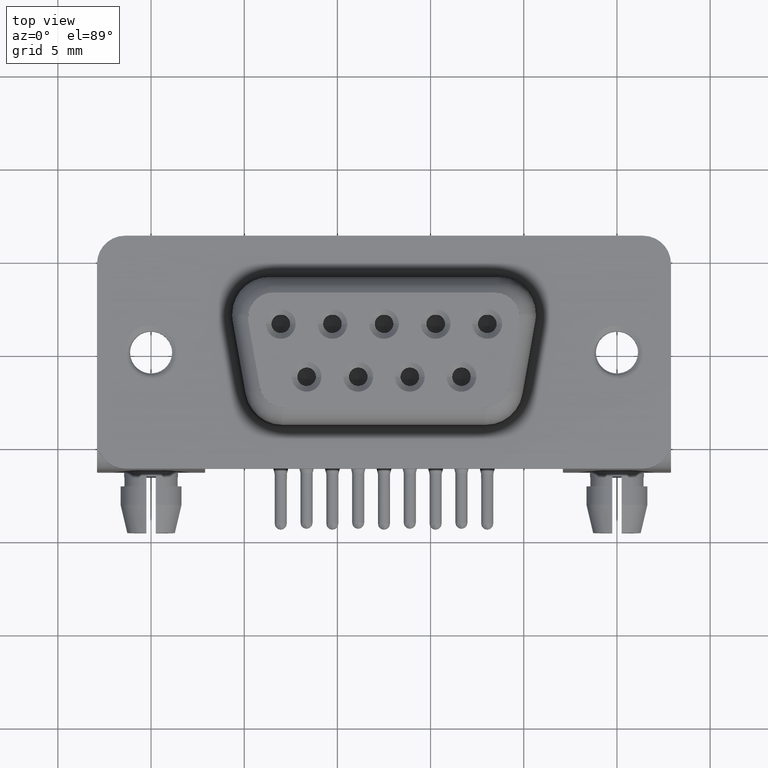
[diagram: clean part render]
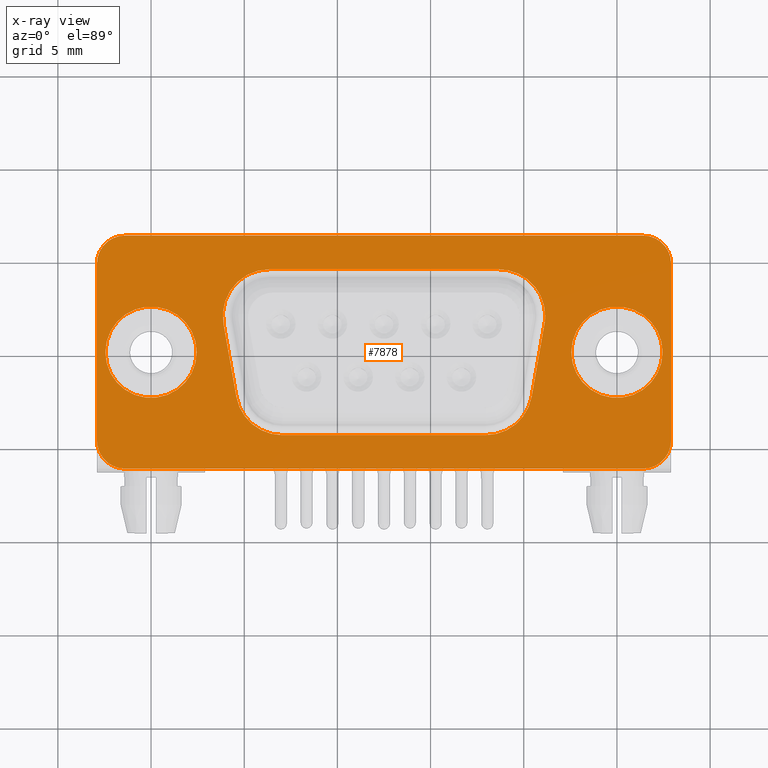
[diagram: x-ray — body ghosted, one internal face saturated and labeled with its STEP entity id]
A machine part, top view, then the same camera in x-ray: the body is ghosted and one INTERNAL B-rep face — a face not visible from any outside direction — is saturated and labeled: STEP entity #7878.
In plain terms, the highlighted planar face has unit normal (0, 0, 1).
Its self-contained STEP definition (entity closure, byte-faithful):
#18 = CARTESIAN_POINT ( 'NONE',  ( 21.15000000000001300, 1.949999999999996800, -2.168404344971008900E-016 ) ) ;
#93 = DIRECTION ( 'NONE',  ( 1.000000000000000000, 0.0000000000000000000, 0.0000000000000000000 ) ) ;
#127 = CARTESIAN_POINT ( 'NONE',  ( 7.037675224762989700, -4.450000000000002800, 0.0000000000000000000 ) ) ;
#333 = CIRCLE ( 'NONE', #11900, 1.500000000000001300 ) ;
#358 = CARTESIAN_POINT ( 'NONE',  ( 27.89999999999999900, -4.749999999999999100, 0.0000000000000000000 ) ) ;
#437 = FACE_OUTER_BOUND ( 'NONE', #2280, .T. ) ;
#455 = CIRCLE ( 'NONE', #6493, 2.449999999999999700 ) ;
#595 = VERTEX_POINT ( 'NONE', #11409 ) ;
#610 = DIRECTION ( 'NONE',  ( 0.0000000000000000000, 0.0000000000000000000, 1.000000000000000000 ) ) ;
#616 = CARTESIAN_POINT ( 'NONE',  ( 18.65000000000000900, 1.949999999999996800, -2.168404344971008900E-016 ) ) ;
#814 = EDGE_CURVE ( 'NONE', #10319, #1893, #8504, .T. ) ;
#957 = DIRECTION ( 'NONE',  ( -0.0000000000000000000, -0.0000000000000000000, -1.000000000000000000 ) ) ;
#1110 = ORIENTED_EDGE ( 'NONE', *, *, #12419, .F. ) ;
#1183 = EDGE_CURVE ( 'NONE', #2492, #4235, #15137, .T. ) ;
#1394 = CIRCLE ( 'NONE', #4216, 1.500000000000001300 ) ;
#1471 = ORIENTED_EDGE ( 'NONE', *, *, #4888, .F. ) ;
#1640 = AXIS2_PLACEMENT_3D ( 'NONE', #616, #10944, #2089 ) ;
#1836 = DIRECTION ( 'NONE',  ( 0.0000000000000000000, 1.000000000000000000, 0.0000000000000000000 ) ) ;
#1893 = VERTEX_POINT ( 'NONE', #9369 ) ;
#2089 = DIRECTION ( 'NONE',  ( 1.000000000000000000, 0.0000000000000000000, 0.0000000000000000000 ) ) ;
#2105 = EDGE_LOOP ( 'NONE', ( #3656, #13592 ) ) ;
#2188 = DIRECTION ( 'NONE',  ( -0.0000000000000000000, -0.0000000000000000000, -1.000000000000000000 ) ) ;
#2280 = EDGE_LOOP ( 'NONE', ( #6340, #15835, #10892, #17942, #13129, #11204, #1110, #4906 ) ) ;
#2440 = CARTESIAN_POINT ( 'NONE',  ( -2.449999999999999700, 3.000384657911015400E-016, 0.0000000000000000000 ) ) ;
#2492 = VERTEX_POINT ( 'NONE', #11731 ) ;
#2810 = LINE ( 'NONE', #6433, #14063 ) ;
#3153 = AXIS2_PLACEMENT_3D ( 'NONE', #14933, #6128, #16453 ) ;
#3288 = AXIS2_PLACEMENT_3D ( 'NONE', #13842, #5050, #15344 ) ;
#3297 = LINE ( 'NONE', #8312, #6756 ) ;
#3656 = ORIENTED_EDGE ( 'NONE', *, *, #7492, .F. ) ;
#3789 = EDGE_CURVE ( 'NONE', #1893, #5425, #9353, .T. ) ;
#4144 = EDGE_CURVE ( 'NONE', #4235, #15692, #333, .T. ) ;
#4216 = AXIS2_PLACEMENT_3D ( 'NONE', #9456, #610, #10937 ) ;
#4235 = VERTEX_POINT ( 'NONE', #14817 ) ;
#4415 = AXIS2_PLACEMENT_3D ( 'NONE', #12935, #7091, #17400 ) ;
#4510 = CARTESIAN_POINT ( 'NONE',  ( 27.89999999999999900, -4.749999999999999100, 0.0000000000000000000 ) ) ;
#4888 = EDGE_CURVE ( 'NONE', #15436, #12870, #6307, .T. ) ;
#4906 = ORIENTED_EDGE ( 'NONE', *, *, #10458, .F. ) ;
#4971 = VERTEX_POINT ( 'NONE', #14009 ) ;
#5009 = DIRECTION ( 'NONE',  ( 1.000000000000000000, 9.360018755270542200E-017, -0.0000000000000000000 ) ) ;
#5050 = DIRECTION ( 'NONE',  ( 0.0000000000000000000, 0.0000000000000000000, 1.000000000000000000 ) ) ;
#5252 = VERTEX_POINT ( 'NONE', #8601 ) ;
#5298 = LINE ( 'NONE', #9693, #8768 ) ;
#5421 = AXIS2_PLACEMENT_3D ( 'NONE', #19030, #11155, #13189 ) ;
#5425 = VERTEX_POINT ( 'NONE', #127 ) ;
#5758 = EDGE_CURVE ( 'NONE', #5425, #13345, #12949, .T. ) ;
#5763 = CARTESIAN_POINT ( 'NONE',  ( 18.65000000000000900, 1.949999999999996800, -2.168404344971008900E-016 ) ) ;
#5882 = CARTESIAN_POINT ( 'NONE',  ( 26.39999999999999500, -4.749999999999999100, 0.0000000000000000000 ) ) ;
#5973 = CARTESIAN_POINT ( 'NONE',  ( -2.900000000000003500, 4.749999999999997300, 0.0000000000000000000 ) ) ;
#6120 = EDGE_CURVE ( 'NONE', #15692, #4971, #15711, .T. ) ;
#6128 = DIRECTION ( 'NONE',  ( -0.0000000000000000000, -0.0000000000000000000, -1.000000000000000000 ) ) ;
#6307 = LINE ( 'NONE', #18254, #7698 ) ;
#6314 = CARTESIAN_POINT ( 'NONE',  ( -1.400000000000001900, 4.749999999999997300, 0.0000000000000000000 ) ) ;
#6340 = ORIENTED_EDGE ( 'NONE', *, *, #11071, .F. ) ;
#6422 = CIRCLE ( 'NONE', #14195, 1.500000000000000900 ) ;
#6433 = CARTESIAN_POINT ( 'NONE',  ( 26.39999999999999500, 6.250000000000001800, 0.0000000000000000000 ) ) ;
#6493 = AXIS2_PLACEMENT_3D ( 'NONE', #7188, #17491, #8682 ) ;
#6756 = VECTOR ( 'NONE', #11261, 999.9999999999998900 ) ;
#6854 = CARTESIAN_POINT ( 'NONE',  ( 3.887980617469481100, 1.515879555832687900, 0.0000000000000000000 ) ) ;
#7091 = DIRECTION ( 'NONE',  ( 0.0000000000000000000, 0.0000000000000000000, 1.000000000000000000 ) ) ;
#7153 = CARTESIAN_POINT ( 'NONE',  ( 25.00000000000000000, 4.592425496802575200E-015, 0.0000000000000000000 ) ) ;
#7188 = CARTESIAN_POINT ( 'NONE',  ( 0.0000000000000000000, 0.0000000000000000000, 0.0000000000000000000 ) ) ;
#7266 = DIRECTION ( 'NONE',  ( 1.000000000000000000, 0.0000000000000000000, 0.0000000000000000000 ) ) ;
#7294 = EDGE_CURVE ( 'NONE', #17380, #8646, #455, .T. ) ;
#7343 = VECTOR ( 'NONE', #5009, 1000.000000000000000 ) ;
#7392 = DIRECTION ( 'NONE',  ( 1.000000000000000000, 0.0000000000000000000, 0.0000000000000000000 ) ) ;
#7492 = EDGE_CURVE ( 'NONE', #8646, #17380, #11999, .T. ) ;
#7673 = CARTESIAN_POINT ( 'NONE',  ( 20.42434415776755000, -2.384120444167310700, 0.0000000000000000000 ) ) ;
#7698 = VECTOR ( 'NONE', #7930, 1000.000000000000000 ) ;
#7737 = EDGE_CURVE ( 'NONE', #13345, #11630, #5298, .T. ) ;
#7803 = DIRECTION ( 'NONE',  ( 1.000000000000000000, 0.0000000000000000000, 0.0000000000000000000 ) ) ;
#7878 = ADVANCED_FACE ( 'NONE', ( #18691, #10367, #437, #14240 ), #18840, .F. ) ;
#7930 = DIRECTION ( 'NONE',  ( 1.000000000000000000, 0.0000000000000000000, -0.0000000000000000000 ) ) ;
#8312 = CARTESIAN_POINT ( 'NONE',  ( 21.11201938253053400, 1.515879555832687900, -2.168404344971008900E-016 ) ) ;
#8452 = CARTESIAN_POINT ( 'NONE',  ( 6.350000000000005000, 4.449999999999997500, 0.0000000000000000000 ) ) ;
#8504 = CIRCLE ( 'NONE', #5421, 2.499999999999998700 ) ;
#8600 = EDGE_LOOP ( 'NONE', ( #12707, #15852 ) ) ;
#8601 = CARTESIAN_POINT ( 'NONE',  ( 27.44999999999999900, 4.592425496802575200E-015, 0.0000000000000000000 ) ) ;
#8645 = DIRECTION ( 'NONE',  ( 1.000000000000000000, 0.0000000000000000000, 0.0000000000000000000 ) ) ;
#8646 = VERTEX_POINT ( 'NONE', #12730 ) ;
#8682 = DIRECTION ( 'NONE',  ( 1.000000000000000000, 0.0000000000000000000, 0.0000000000000000000 ) ) ;
#8768 = VECTOR ( 'NONE', #12625, 999.9999999999998900 ) ;
#8808 = AXIS2_PLACEMENT_3D ( 'NONE', #5763, #16081, #7266 ) ;
#8922 = VERTEX_POINT ( 'NONE', #5973 ) ;
#8932 = DIRECTION ( 'NONE',  ( -0.0000000000000000000, -0.0000000000000000000, -1.000000000000000000 ) ) ;
#9279 = VECTOR ( 'NONE', #1836, 1000.000000000000000 ) ;
#9353 = LINE ( 'NONE', #9526, #12780 ) ;
#9369 = CARTESIAN_POINT ( 'NONE',  ( 17.96232477523702500, -4.450000000000001100, 0.0000000000000000000 ) ) ;
#9416 = DIRECTION ( 'NONE',  ( -1.000000000000000000, -1.560003125878423900E-016, 0.0000000000000000000 ) ) ;
#9456 = CARTESIAN_POINT ( 'NONE',  ( 26.39999999999999500, 4.750000000000000900, 0.0000000000000000000 ) ) ;
#9482 = EDGE_LOOP ( 'NONE', ( #11555, #10474, #10492, #10405, #14426, #11454, #18282, #1471, #16354 ) ) ;
#9526 = CARTESIAN_POINT ( 'NONE',  ( 26.39999999999999500, -4.450000000000001100, 0.0000000000000000000 ) ) ;
#9693 = CARTESIAN_POINT ( 'NONE',  ( 4.575655842232465400, -2.384120444167311200, -2.168404344971008900E-016 ) ) ;
#9732 = EDGE_CURVE ( 'NONE', #5252, #12675, #12505, .T. ) ;
#9759 = AXIS2_PLACEMENT_3D ( 'NONE', #17763, #8932, #93 ) ;
#9798 = CARTESIAN_POINT ( 'NONE',  ( 7.037675224762990600, -1.950000000000002200, -2.168404344971008900E-016 ) ) ;
#10319 = VERTEX_POINT ( 'NONE', #7673 ) ;
#10367 = FACE_BOUND ( 'NONE', #9482, .T. ) ;
#10405 = ORIENTED_EDGE ( 'NONE', *, *, #814, .F. ) ;
#10458 = EDGE_CURVE ( 'NONE', #13705, #18044, #2810, .T. ) ;
#10474 = ORIENTED_EDGE ( 'NONE', *, *, #5758, .F. ) ;
#10492 = ORIENTED_EDGE ( 'NONE', *, *, #3789, .F. ) ;
#10582 = DIRECTION ( 'NONE',  ( -0.0000000000000000000, -1.000000000000000000, -0.0000000000000000000 ) ) ;
#10690 = AXIS2_PLACEMENT_3D ( 'NONE', #9798, #957, #11272 ) ;
#10863 = CIRCLE ( 'NONE', #11259, 2.499999999999999600 ) ;
#10892 = ORIENTED_EDGE ( 'NONE', *, *, #4144, .F. ) ;
#10930 = CARTESIAN_POINT ( 'NONE',  ( 4.575655842232465400, -2.384120444167310700, 0.0000000000000000000 ) ) ;
#10937 = DIRECTION ( 'NONE',  ( 1.000000000000000000, 0.0000000000000000000, 0.0000000000000000000 ) ) ;
#10944 = DIRECTION ( 'NONE',  ( -0.0000000000000000000, -0.0000000000000000000, -1.000000000000000000 ) ) ;
#10999 = DIRECTION ( 'NONE',  ( -1.000000000000000000, -0.0000000000000000000, 0.0000000000000000000 ) ) ;
#11037 = CARTESIAN_POINT ( 'NONE',  ( 6.350000000000005900, 1.949999999999996800, -2.168404344971008900E-016 ) ) ;
#11071 = EDGE_CURVE ( 'NONE', #4971, #13705, #1394, .T. ) ;
#11155 = DIRECTION ( 'NONE',  ( -0.0000000000000000000, -0.0000000000000000000, -1.000000000000000000 ) ) ;
#11204 = ORIENTED_EDGE ( 'NONE', *, *, #14366, .F. ) ;
#11259 = AXIS2_PLACEMENT_3D ( 'NONE', #11037, #2188, #12507 ) ;
#11261 = DIRECTION ( 'NONE',  ( -0.1736481776669242500, -0.9848077530122092400, 0.0000000000000000000 ) ) ;
#11272 = DIRECTION ( 'NONE',  ( 1.000000000000000000, 8.673617379884037400E-016, 0.0000000000000000000 ) ) ;
#11354 = EDGE_CURVE ( 'NONE', #18797, #16073, #13355, .T. ) ;
#11409 = CARTESIAN_POINT ( 'NONE',  ( -2.900000000000002600, -4.750000000000002700, 0.0000000000000000000 ) ) ;
#11454 = ORIENTED_EDGE ( 'NONE', *, *, #11354, .F. ) ;
#11555 = ORIENTED_EDGE ( 'NONE', *, *, #7737, .F. ) ;
#11630 = VERTEX_POINT ( 'NONE', #6854 ) ;
#11731 = CARTESIAN_POINT ( 'NONE',  ( -1.400000000000001700, -6.250000000000001800, 0.0000000000000000000 ) ) ;
#11900 = AXIS2_PLACEMENT_3D ( 'NONE', #5882, #16210, #7392 ) ;
#11999 = CIRCLE ( 'NONE', #3153, 2.449999999999999700 ) ;
#12419 = EDGE_CURVE ( 'NONE', #18044, #8922, #6422, .T. ) ;
#12482 = CARTESIAN_POINT ( 'NONE',  ( 18.65000000000000900, 4.449999999999997500, 0.0000000000000000000 ) ) ;
#12505 = CIRCLE ( 'NONE', #9759, 2.449999999999997500 ) ;
#12507 = DIRECTION ( 'NONE',  ( 1.000000000000000000, 0.0000000000000000000, 0.0000000000000000000 ) ) ;
#12509 = CIRCLE ( 'NONE', #3288, 1.500000000000000400 ) ;
#12625 = DIRECTION ( 'NONE',  ( -0.1736481776669235900, 0.9848077530122093500, -0.0000000000000000000 ) ) ;
#12675 = VERTEX_POINT ( 'NONE', #18583 ) ;
#12707 = ORIENTED_EDGE ( 'NONE', *, *, #9732, .F. ) ;
#12730 = CARTESIAN_POINT ( 'NONE',  ( 2.449999999999999700, 0.0000000000000000000, 0.0000000000000000000 ) ) ;
#12780 = VECTOR ( 'NONE', #10999, 1000.000000000000000 ) ;
#12870 = VERTEX_POINT ( 'NONE', #12482 ) ;
#12935 = CARTESIAN_POINT ( 'NONE',  ( 26.39999999999999500, 4.750000000000000900, 0.0000000000000000000 ) ) ;
#12949 = CIRCLE ( 'NONE', #10690, 2.499999999999999600 ) ;
#13129 = ORIENTED_EDGE ( 'NONE', *, *, #18368, .F. ) ;
#13189 = DIRECTION ( 'NONE',  ( 1.000000000000000000, 8.673617379884040400E-016, 0.0000000000000000000 ) ) ;
#13345 = VERTEX_POINT ( 'NONE', #10930 ) ;
#13355 = CIRCLE ( 'NONE', #8808, 2.500000000000002200 ) ;
#13572 = VECTOR ( 'NONE', #10582, 1000.000000000000000 ) ;
#13592 = ORIENTED_EDGE ( 'NONE', *, *, #7294, .F. ) ;
#13705 = VERTEX_POINT ( 'NONE', #16265 ) ;
#13842 = CARTESIAN_POINT ( 'NONE',  ( -1.400000000000001900, -4.750000000000002700, 0.0000000000000000000 ) ) ;
#13997 = EDGE_CURVE ( 'NONE', #11630, #15436, #10863, .T. ) ;
#14009 = CARTESIAN_POINT ( 'NONE',  ( 27.89999999999999900, 4.750000000000000900, 0.0000000000000000000 ) ) ;
#14063 = VECTOR ( 'NONE', #9416, 1000.000000000000000 ) ;
#14195 = AXIS2_PLACEMENT_3D ( 'NONE', #6314, #16633, #7803 ) ;
#14240 = FACE_BOUND ( 'NONE', #2105, .T. ) ;
#14366 = EDGE_CURVE ( 'NONE', #8922, #595, #17987, .T. ) ;
#14426 = ORIENTED_EDGE ( 'NONE', *, *, #17983, .F. ) ;
#14817 = CARTESIAN_POINT ( 'NONE',  ( 26.39999999999999500, -6.250000000000000000, 0.0000000000000000000 ) ) ;
#14933 = CARTESIAN_POINT ( 'NONE',  ( 0.0000000000000000000, 0.0000000000000000000, 0.0000000000000000000 ) ) ;
#15137 = LINE ( 'NONE', #15456, #7343 ) ;
#15344 = DIRECTION ( 'NONE',  ( -1.000000000000000000, 0.0000000000000000000, 0.0000000000000000000 ) ) ;
#15374 = CIRCLE ( 'NONE', #1640, 2.500000000000002200 ) ;
#15436 = VERTEX_POINT ( 'NONE', #8452 ) ;
#15456 = CARTESIAN_POINT ( 'NONE',  ( 26.39999999999999500, -6.249999999999999100, 0.0000000000000000000 ) ) ;
#15534 = EDGE_CURVE ( 'NONE', #12675, #5252, #17952, .T. ) ;
#15692 = VERTEX_POINT ( 'NONE', #4510 ) ;
#15711 = LINE ( 'NONE', #358, #9279 ) ;
#15835 = ORIENTED_EDGE ( 'NONE', *, *, #6120, .F. ) ;
#15852 = ORIENTED_EDGE ( 'NONE', *, *, #15534, .F. ) ;
#16013 = EDGE_CURVE ( 'NONE', #12870, #18797, #15374, .T. ) ;
#16073 = VERTEX_POINT ( 'NONE', #18428 ) ;
#16081 = DIRECTION ( 'NONE',  ( -0.0000000000000000000, -0.0000000000000000000, -1.000000000000000000 ) ) ;
#16210 = DIRECTION ( 'NONE',  ( 0.0000000000000000000, 0.0000000000000000000, 1.000000000000000000 ) ) ;
#16265 = CARTESIAN_POINT ( 'NONE',  ( 26.39999999999999500, 6.250000000000001800, 0.0000000000000000000 ) ) ;
#16354 = ORIENTED_EDGE ( 'NONE', *, *, #13997, .F. ) ;
#16453 = DIRECTION ( 'NONE',  ( 1.000000000000000000, 0.0000000000000000000, 0.0000000000000000000 ) ) ;
#16633 = DIRECTION ( 'NONE',  ( 0.0000000000000000000, 0.0000000000000000000, 1.000000000000000000 ) ) ;
#17380 = VERTEX_POINT ( 'NONE', #2440 ) ;
#17400 = DIRECTION ( 'NONE',  ( 1.000000000000000000, 0.0000000000000000000, -0.0000000000000000000 ) ) ;
#17463 = DIRECTION ( 'NONE',  ( -0.0000000000000000000, -0.0000000000000000000, -1.000000000000000000 ) ) ;
#17491 = DIRECTION ( 'NONE',  ( -0.0000000000000000000, -0.0000000000000000000, -1.000000000000000000 ) ) ;
#17763 = CARTESIAN_POINT ( 'NONE',  ( 25.00000000000000000, 4.592425496802575200E-015, 0.0000000000000000000 ) ) ;
#17942 = ORIENTED_EDGE ( 'NONE', *, *, #1183, .F. ) ;
#17952 = CIRCLE ( 'NONE', #18212, 2.449999999999997500 ) ;
#17983 = EDGE_CURVE ( 'NONE', #16073, #10319, #3297, .T. ) ;
#17984 = CARTESIAN_POINT ( 'NONE',  ( -2.900000000000003500, -4.750000000000002700, 0.0000000000000000000 ) ) ;
#17987 = LINE ( 'NONE', #17984, #13572 ) ;
#18044 = VERTEX_POINT ( 'NONE', #18761 ) ;
#18212 = AXIS2_PLACEMENT_3D ( 'NONE', #7153, #17463, #8645 ) ;
#18254 = CARTESIAN_POINT ( 'NONE',  ( 26.39999999999999500, 4.449999999999997500, 0.0000000000000000000 ) ) ;
#18282 = ORIENTED_EDGE ( 'NONE', *, *, #16013, .F. ) ;
#18368 = EDGE_CURVE ( 'NONE', #595, #2492, #12509, .T. ) ;
#18428 = CARTESIAN_POINT ( 'NONE',  ( 21.11201938253054100, 1.515879555832687200, -2.168404344971008900E-016 ) ) ;
#18583 = CARTESIAN_POINT ( 'NONE',  ( 22.55000000000000400, 4.892463962593676000E-015, 0.0000000000000000000 ) ) ;
#18691 = FACE_BOUND ( 'NONE', #8600, .T. ) ;
#18761 = CARTESIAN_POINT ( 'NONE',  ( -1.400000000000002100, 6.249999999999998200, 0.0000000000000000000 ) ) ;
#18797 = VERTEX_POINT ( 'NONE', #18 ) ;
#18840 = PLANE ( 'NONE',  #4415 ) ;
#19030 = CARTESIAN_POINT ( 'NONE',  ( 17.96232477523702500, -1.950000000000002200, -2.168404344971008900E-016 ) ) ;